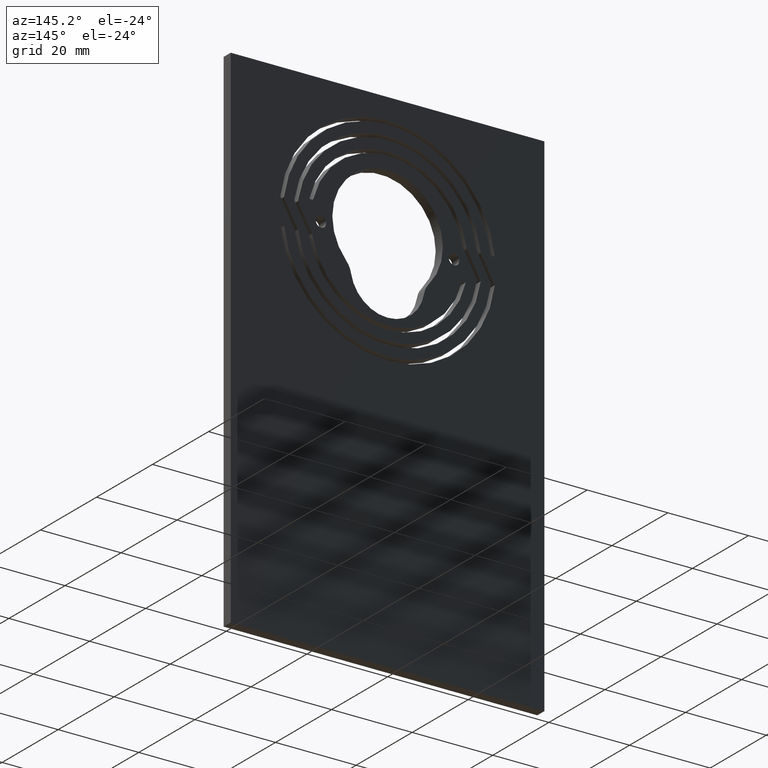
[diagram: clean part render]
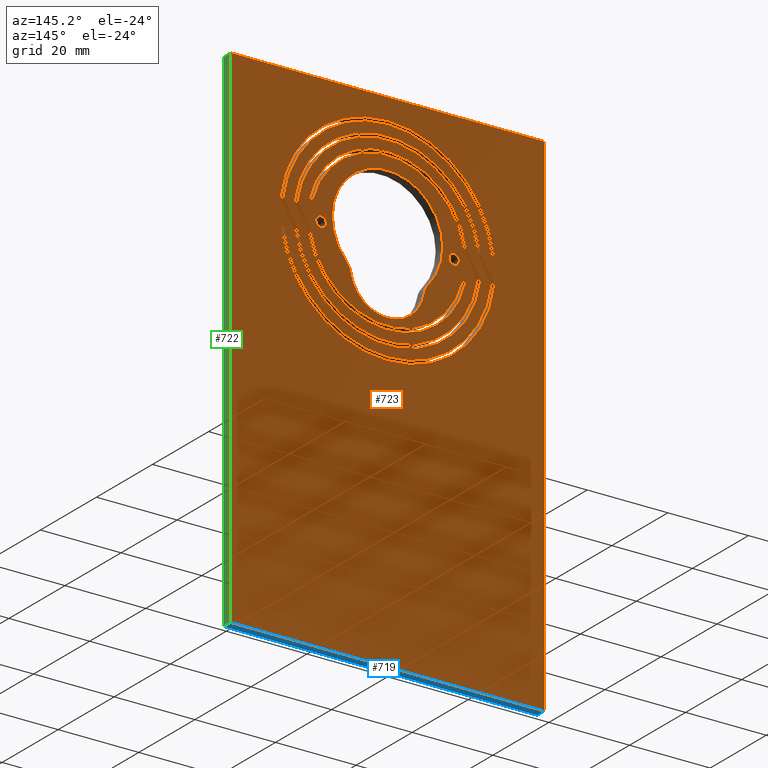
[diagram: same view with three faces highlighted in distinct colors, each labeled with its STEP entity id]
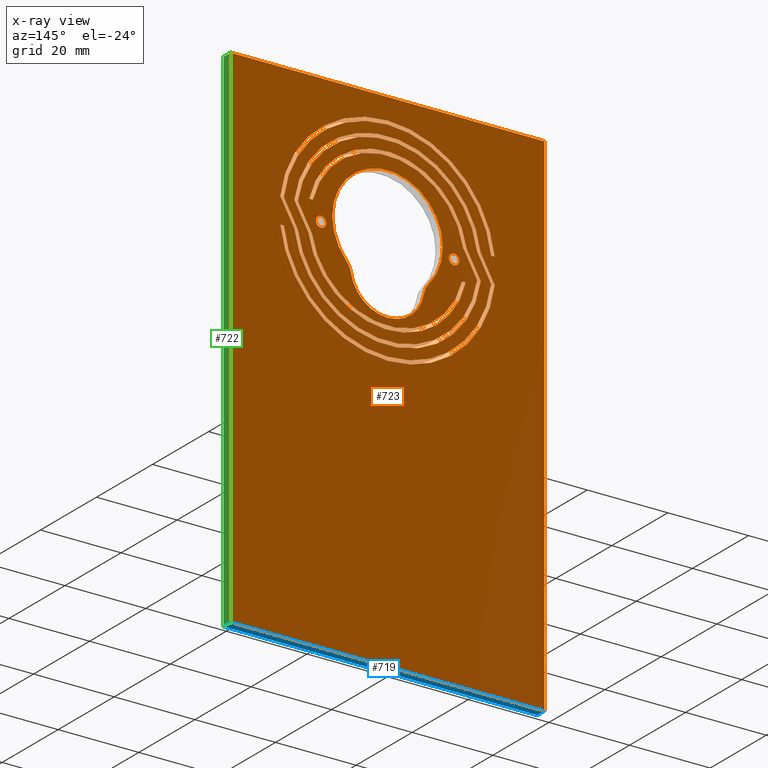
[diagram: x-ray of the same camera — body ghosted, the three highlighted faces saturated]
A machine part, auxiliary view with three faces highlighted in distinct colors.
The next image is the same camera in x-ray (body ghosted, the three faces saturated) — at least one of them is partly hidden behind the body in this view.
Their STEP definitions:

[orange] entity #723 — the highlighted planar face has unit normal (0, 1, 0).
#19=FACE_BOUND('',#118,.T.);
#20=FACE_BOUND('',#119,.T.);
#21=FACE_BOUND('',#120,.T.);
#22=FACE_BOUND('',#121,.T.);
#23=FACE_BOUND('',#122,.T.);
#45=PLANE('',#810);
#81=FACE_OUTER_BOUND('',#117,.T.);
#117=EDGE_LOOP('',(#603,#604,#605,#606));
#118=EDGE_LOOP('',(#607));
#119=EDGE_LOOP('',(#608));
#120=EDGE_LOOP('',(#609,#610,#611,#612));
#121=EDGE_LOOP('',(#613,#614,#615,#616,#617,#618,#619,#620,#621,#622,#623,
#624));
#122=EDGE_LOOP('',(#625,#626,#627,#628,#629,#630,#631,#632,#633,#634,#635,
#636));
#138=LINE('',#1080,#204);
#142=LINE('',#1092,#208);
#146=LINE('',#1104,#212);
#150=LINE('',#1116,#216);
#154=LINE('',#1128,#220);
#158=LINE('',#1138,#224);
#161=LINE('',#1146,#227);
#165=LINE('',#1158,#231);
#169=LINE('',#1170,#235);
#173=LINE('',#1182,#239);
#177=LINE('',#1194,#243);
#181=LINE('',#1206,#247);
#183=LINE('',#1214,#249);
#187=LINE('',#1222,#253);
#190=LINE('',#1228,#256);
#193=LINE('',#1233,#259);
#204=VECTOR('',#870,10.);
#208=VECTOR('',#882,10.);
#212=VECTOR('',#894,10.);
#216=VECTOR('',#906,10.);
#220=VECTOR('',#918,10.);
#224=VECTOR('',#930,10.);
#227=VECTOR('',#935,10.);
#231=VECTOR('',#947,10.);
#235=VECTOR('',#959,10.);
#239=VECTOR('',#971,10.);
#243=VECTOR('',#983,10.);
#247=VECTOR('',#995,10.);
#249=VECTOR('',#1005,10.);
#253=VECTOR('',#1011,10.);
#256=VECTOR('',#1016,10.);
#259=VECTOR('',#1021,10.);
#261=CIRCLE('',#741,1.3);
#263=CIRCLE('',#744,1.3);
#266=CIRCLE('',#748,4.8);
#268=CIRCLE('',#751,13.7);
#270=CIRCLE('',#754,4.8);
#272=CIRCLE('',#757,9.20000000000001);
#274=CIRCLE('',#760,19.9);
#276=CIRCLE('',#764,19.);
#278=CIRCLE('',#768,22.44);
#280=CIRCLE('',#772,25.88);
#282=CIRCLE('',#776,26.78);
#284=CIRCLE('',#780,23.34);
#286=CIRCLE('',#785,25.88);
#288=CIRCLE('',#789,26.78);
#290=CIRCLE('',#793,23.34);
#292=CIRCLE('',#797,19.9);
#294=CIRCLE('',#801,19.);
#296=CIRCLE('',#805,22.44);
#297=VERTEX_POINT('',#1032);
#299=VERTEX_POINT('',#1038);
#303=VERTEX_POINT('',#1047);
#304=VERTEX_POINT('',#1049);
#306=VERTEX_POINT('',#1055);
#308=VERTEX_POINT('',#1061);
#311=VERTEX_POINT('',#1071);
#312=VERTEX_POINT('',#1073);
#314=VERTEX_POINT('',#1079);
#316=VERTEX_POINT('',#1085);
#318=VERTEX_POINT('',#1091);
#320=VERTEX_POINT('',#1097);
#322=VERTEX_POINT('',#1103);
#324=VERTEX_POINT('',#1109);
#326=VERTEX_POINT('',#1115);
#328=VERTEX_POINT('',#1121);
#330=VERTEX_POINT('',#1127);
#332=VERTEX_POINT('',#1133);
#335=VERTEX_POINT('',#1143);
#336=VERTEX_POINT('',#1145);
#338=VERTEX_POINT('',#1151);
#340=VERTEX_POINT('',#1157);
#342=VERTEX_POINT('',#1163);
#344=VERTEX_POINT('',#1169);
#346=VERTEX_POINT('',#1175);
#348=VERTEX_POINT('',#1181);
#350=VERTEX_POINT('',#1187);
#352=VERTEX_POINT('',#1193);
#354=VERTEX_POINT('',#1199);
#356=VERTEX_POINT('',#1205);
#357=VERTEX_POINT('',#1212);
#358=VERTEX_POINT('',#1213);
#361=VERTEX_POINT('',#1221);
#363=VERTEX_POINT('',#1227);
#365=EDGE_CURVE('',#297,#297,#261,.T.);
#368=EDGE_CURVE('',#299,#299,#263,.T.);
#373=EDGE_CURVE('',#304,#303,#266,.T.);
#376=EDGE_CURVE('',#306,#304,#268,.T.);
#379=EDGE_CURVE('',#308,#306,#270,.T.);
#382=EDGE_CURVE('',#303,#308,#272,.T.);
#385=EDGE_CURVE('',#312,#311,#274,.T.);
#388=EDGE_CURVE('',#314,#312,#138,.T.);
#391=EDGE_CURVE('',#316,#314,#276,.T.);
#394=EDGE_CURVE('',#318,#316,#142,.T.);
#397=EDGE_CURVE('',#320,#318,#278,.T.);
#400=EDGE_CURVE('',#322,#320,#146,.T.);
#403=EDGE_CURVE('',#324,#322,#280,.T.);
#406=EDGE_CURVE('',#326,#324,#150,.T.);
#409=EDGE_CURVE('',#328,#326,#282,.T.);
#412=EDGE_CURVE('',#330,#328,#154,.T.);
#415=EDGE_CURVE('',#332,#330,#284,.T.);
#418=EDGE_CURVE('',#311,#332,#158,.T.);
#421=EDGE_CURVE('',#336,#335,#161,.T.);
#424=EDGE_CURVE('',#338,#336,#286,.T.);
#427=EDGE_CURVE('',#340,#338,#165,.T.);
#430=EDGE_CURVE('',#342,#340,#288,.T.);
#433=EDGE_CURVE('',#344,#342,#169,.T.);
#436=EDGE_CURVE('',#346,#344,#290,.T.);
#439=EDGE_CURVE('',#348,#346,#173,.T.);
#442=EDGE_CURVE('',#350,#348,#292,.T.);
#445=EDGE_CURVE('',#352,#350,#177,.T.);
#448=EDGE_CURVE('',#354,#352,#294,.T.);
#451=EDGE_CURVE('',#356,#354,#181,.T.);
#454=EDGE_CURVE('',#335,#356,#296,.T.);
#455=EDGE_CURVE('',#357,#358,#183,.T.);
#459=EDGE_CURVE('',#358,#361,#187,.T.);
#462=EDGE_CURVE('',#361,#363,#190,.T.);
#465=EDGE_CURVE('',#363,#357,#193,.T.);
#603=ORIENTED_EDGE('',*,*,#465,.T.);
#604=ORIENTED_EDGE('',*,*,#455,.T.);
#605=ORIENTED_EDGE('',*,*,#459,.T.);
#606=ORIENTED_EDGE('',*,*,#462,.T.);
#607=ORIENTED_EDGE('',*,*,#365,.T.);
#608=ORIENTED_EDGE('',*,*,#368,.T.);
#609=ORIENTED_EDGE('',*,*,#373,.T.);
#610=ORIENTED_EDGE('',*,*,#382,.T.);
#611=ORIENTED_EDGE('',*,*,#379,.T.);
#612=ORIENTED_EDGE('',*,*,#376,.T.);
#613=ORIENTED_EDGE('',*,*,#385,.T.);
#614=ORIENTED_EDGE('',*,*,#418,.T.);
#615=ORIENTED_EDGE('',*,*,#415,.T.);
#616=ORIENTED_EDGE('',*,*,#412,.T.);
#617=ORIENTED_EDGE('',*,*,#409,.T.);
#618=ORIENTED_EDGE('',*,*,#406,.T.);
#619=ORIENTED_EDGE('',*,*,#403,.T.);
#620=ORIENTED_EDGE('',*,*,#400,.T.);
#621=ORIENTED_EDGE('',*,*,#397,.T.);
#622=ORIENTED_EDGE('',*,*,#394,.T.);
#623=ORIENTED_EDGE('',*,*,#391,.T.);
#624=ORIENTED_EDGE('',*,*,#388,.T.);
#625=ORIENTED_EDGE('',*,*,#421,.T.);
#626=ORIENTED_EDGE('',*,*,#454,.T.);
#627=ORIENTED_EDGE('',*,*,#451,.T.);
#628=ORIENTED_EDGE('',*,*,#448,.T.);
#629=ORIENTED_EDGE('',*,*,#445,.T.);
#630=ORIENTED_EDGE('',*,*,#442,.T.);
#631=ORIENTED_EDGE('',*,*,#439,.T.);
#632=ORIENTED_EDGE('',*,*,#436,.T.);
#633=ORIENTED_EDGE('',*,*,#433,.T.);
#634=ORIENTED_EDGE('',*,*,#430,.T.);
#635=ORIENTED_EDGE('',*,*,#427,.T.);
#636=ORIENTED_EDGE('',*,*,#424,.T.);
#723=ADVANCED_FACE('',(#81,#19,#20,#21,#22,#23),#45,.T.);
#741=AXIS2_PLACEMENT_3D('',#1033,#819,#820);
#744=AXIS2_PLACEMENT_3D('',#1039,#826,#827);
#748=AXIS2_PLACEMENT_3D('',#1050,#836,#837);
#751=AXIS2_PLACEMENT_3D('',#1056,#843,#844);
#754=AXIS2_PLACEMENT_3D('',#1062,#850,#851);
#757=AXIS2_PLACEMENT_3D('',#1066,#857,#858);
#760=AXIS2_PLACEMENT_3D('',#1074,#864,#865);
#764=AXIS2_PLACEMENT_3D('',#1086,#876,#877);
#768=AXIS2_PLACEMENT_3D('',#1098,#888,#889);
#772=AXIS2_PLACEMENT_3D('',#1110,#900,#901);
#776=AXIS2_PLACEMENT_3D('',#1122,#912,#913);
#780=AXIS2_PLACEMENT_3D('',#1134,#924,#925);
#785=AXIS2_PLACEMENT_3D('',#1152,#941,#942);
#789=AXIS2_PLACEMENT_3D('',#1164,#953,#954);
#793=AXIS2_PLACEMENT_3D('',#1176,#965,#966);
#797=AXIS2_PLACEMENT_3D('',#1188,#977,#978);
#801=AXIS2_PLACEMENT_3D('',#1200,#989,#990);
#805=AXIS2_PLACEMENT_3D('',#1210,#1001,#1002);
#810=AXIS2_PLACEMENT_3D('',#1235,#1023,#1024);
#819=DIRECTION('center_axis',(0.,-1.,0.));
#820=DIRECTION('ref_axis',(0.,0.,1.));
#826=DIRECTION('center_axis',(0.,-1.,0.));
#827=DIRECTION('ref_axis',(0.,0.,1.));
#836=DIRECTION('center_axis',(0.,1.,0.));
#837=DIRECTION('ref_axis',(0.746361701118838,0.,0.66554054054054));
#843=DIRECTION('center_axis',(0.,-1.,0.));
#844=DIRECTION('ref_axis',(-0.746361701118838,0.,-0.66554054054054));
#850=DIRECTION('center_axis',(0.,1.,0.));
#851=DIRECTION('ref_axis',(-0.986263676478464,0.,0.165178571428571));
#857=DIRECTION('center_axis',(0.,-1.,0.));
#858=DIRECTION('ref_axis',(0.986263676478464,0.,-0.165178571428571));
#864=DIRECTION('center_axis',(0.,-1.,0.));
#865=DIRECTION('ref_axis',(1.,0.,0.));
#870=DIRECTION('',(1.,0.,0.));
#876=DIRECTION('center_axis',(0.,1.,0.));
#877=DIRECTION('ref_axis',(1.,0.,0.));
#882=DIRECTION('',(0.480742519782678,0.,0.876861807625923));
#888=DIRECTION('center_axis',(0.,1.,0.));
#889=DIRECTION('ref_axis',(1.,0.,0.));
#894=DIRECTION('',(-0.47955666712719,0.,-0.877510913330348));
#900=DIRECTION('center_axis',(0.,1.,0.));
#901=DIRECTION('ref_axis',(1.,0.,0.));
#906=DIRECTION('',(1.,0.,8.35032850502955E-17));
#912=DIRECTION('center_axis',(0.,-1.,0.));
#913=DIRECTION('ref_axis',(1.,0.,0.));
#918=DIRECTION('',(0.47932562607324,0.,0.877637136970341));
#924=DIRECTION('center_axis',(0.,-1.,0.));
#925=DIRECTION('ref_axis',(1.,0.,0.));
#930=DIRECTION('',(-0.480375580641031,0.,-0.877062883448953));
#935=DIRECTION('',(0.479556667127191,0.,0.877510913330347));
#941=DIRECTION('center_axis',(0.,1.,0.));
#942=DIRECTION('ref_axis',(1.,0.,0.));
#947=DIRECTION('',(-1.,0.,0.));
#953=DIRECTION('center_axis',(0.,-1.,0.));
#954=DIRECTION('ref_axis',(1.,0.,0.));
#959=DIRECTION('',(-0.47932562607324,0.,-0.877637136970341));
#965=DIRECTION('center_axis',(0.,-1.,0.));
#966=DIRECTION('ref_axis',(1.,0.,0.));
#971=DIRECTION('',(0.48037558064103,0.,0.877062883448954));
#977=DIRECTION('center_axis',(0.,-1.,0.));
#978=DIRECTION('ref_axis',(1.,0.,0.));
#983=DIRECTION('',(-1.,0.,0.));
#989=DIRECTION('center_axis',(0.,1.,0.));
#990=DIRECTION('ref_axis',(1.,0.,0.));
#995=DIRECTION('',(-0.480742519782678,0.,-0.876861807625923));
#1001=DIRECTION('center_axis',(0.,1.,0.));
#1002=DIRECTION('ref_axis',(1.,0.,0.));
#1005=DIRECTION('',(-1.,0.,0.));
#1011=DIRECTION('',(1.3987061727561E-16,0.,1.));
#1016=DIRECTION('',(1.,0.,0.));
#1021=DIRECTION('',(-3.49676543189026E-17,0.,-1.));
#1023=DIRECTION('center_axis',(0.,1.,0.));
#1024=DIRECTION('ref_axis',(1.,0.,0.));
#1032=CARTESIAN_POINT('',(16.5,0.,-3.29999999999999));
#1033=CARTESIAN_POINT('Origin',(16.5,0.,-1.99999999999999));
#1038=CARTESIAN_POINT('',(-16.5,0.,-3.30000000000001));
#1039=CARTESIAN_POINT('Origin',(-16.5,0.,-2.00000000000001));
#1047=CARTESIAN_POINT('',(-9.07362582360187,0.,-11.5196428571429));
#1049=CARTESIAN_POINT('',(-10.2251553053281,0.,-9.1179054054054));
#1050=CARTESIAN_POINT('Origin',(-13.8076914706985,0.,-12.3125));
#1055=CARTESIAN_POINT('',(10.2251553053281,0.,-9.1179054054054));
#1056=CARTESIAN_POINT('Origin',(4.44089209850063E-15,0.,2.77555756156289E-16));
#1061=CARTESIAN_POINT('',(9.07362582360188,0.,-11.5196428571428));
#1062=CARTESIAN_POINT('Origin',(13.8076914706985,0.,-12.3125));
#1066=CARTESIAN_POINT('Origin',(0.,0.,-9.99999999999999));
#1071=CARTESIAN_POINT('',(-19.6450852632408,0.,1.175));
#1073=CARTESIAN_POINT('',(19.4065889547107,0.,2.40389658630871));
#1074=CARTESIAN_POINT('Origin',(2.80030629290744E-16,0.,-2.));
#1079=CARTESIAN_POINT('',(18.4825781442173,0.,2.40389658630871));
#1080=CARTESIAN_POINT('',(9.24128907210864,0.,2.40389658630871));
#1085=CARTESIAN_POINT('',(-18.7328421495511,0.,1.175));
#1086=CARTESIAN_POINT('Origin',(2.80030629290744E-16,0.,-2.));
#1091=CARTESIAN_POINT('',(-22.2142516191746,0.,-5.17500000000001));
#1092=CARTESIAN_POINT('',(-25.6173739299359,0.,-11.3822062657059));
#1097=CARTESIAN_POINT('',(22.2142516191746,0.,-5.175));
#1098=CARTESIAN_POINT('Origin',(2.80030629290744E-16,0.,-2.));
#1103=CARTESIAN_POINT('',(25.6845045698764,0.,1.175));
#1104=CARTESIAN_POINT('',(15.4352117533324,0.,-17.5795433458654));
#1109=CARTESIAN_POINT('',(-25.6845045698764,0.,1.175));
#1110=CARTESIAN_POINT('Origin',(2.80030629290744E-16,0.,-2.));
#1115=CARTESIAN_POINT('',(-26.5911221087039,0.,1.175));
#1116=CARTESIAN_POINT('',(-13.2955610543519,0.,1.175));
#1121=CARTESIAN_POINT('',(26.5911221087039,0.,1.175));
#1122=CARTESIAN_POINT('Origin',(2.80030629290744E-16,0.,-2.));
#1127=CARTESIAN_POINT('',(23.1230399169313,0.,-5.175));
#1128=CARTESIAN_POINT('',(14.5089502745033,0.,-20.9472528489041));
#1133=CARTESIAN_POINT('',(-23.1230399169313,0.,-5.175));
#1134=CARTESIAN_POINT('Origin',(2.80030629290744E-16,0.,-2.));
#1138=CARTESIAN_POINT('',(-24.6830568892438,0.,-8.02325673723841));
#1143=CARTESIAN_POINT('',(-22.2142516191746,0.,1.17499999999999));
#1145=CARTESIAN_POINT('',(-25.6845045698764,0.,-5.175));
#1146=CARTESIAN_POINT('',(-28.6909223357122,0.,-10.6762568490712));
#1151=CARTESIAN_POINT('',(25.6845045698764,0.,-5.175));
#1152=CARTESIAN_POINT('Origin',(2.80030629290744E-16,0.,-2.));
#1157=CARTESIAN_POINT('',(26.5911221087039,0.,-5.175));
#1158=CARTESIAN_POINT('',(13.2955610543519,0.,-5.175));
#1163=CARTESIAN_POINT('',(-26.5911221087039,0.,-5.175));
#1164=CARTESIAN_POINT('Origin',(2.80030629290744E-16,0.,-2.));
#1169=CARTESIAN_POINT('',(-23.1230399169313,0.,1.175));
#1170=CARTESIAN_POINT('',(-27.7601803340215,0.,-7.31552589306509));
#1175=CARTESIAN_POINT('',(23.1230399169313,0.,1.175));
#1176=CARTESIAN_POINT('Origin',(2.80030629290744E-16,0.,-2.));
#1181=CARTESIAN_POINT('',(19.6450852632408,0.,-5.175));
#1182=CARTESIAN_POINT('',(11.4114897445359,0.,-20.2077812607611));
#1187=CARTESIAN_POINT('',(-19.4065889547107,0.,-6.40389658630871));
#1188=CARTESIAN_POINT('Origin',(2.80030629290744E-16,0.,-2.));
#1193=CARTESIAN_POINT('',(-18.4825781442173,0.,-6.40389658630871));
#1194=CARTESIAN_POINT('',(-9.24128907210865,0.,-6.40389658630871));
#1199=CARTESIAN_POINT('',(18.7328421495511,0.,-5.175));
#1200=CARTESIAN_POINT('Origin',(2.80030629290744E-16,0.,-2.));
#1205=CARTESIAN_POINT('',(22.2142516191746,0.,1.175));
#1206=CARTESIAN_POINT('',(12.3387141506086,0.,-16.8377225689936));
#1210=CARTESIAN_POINT('Origin',(2.80030629290744E-16,0.,-2.));
#1212=CARTESIAN_POINT('',(38.8874,0.,-97.));
#1213=CARTESIAN_POINT('',(-38.8874,0.,-97.));
#1214=CARTESIAN_POINT('',(38.8874,0.,-97.));
#1221=CARTESIAN_POINT('',(-38.8874,0.,30.));
#1222=CARTESIAN_POINT('',(-38.8874,0.,-97.));
#1227=CARTESIAN_POINT('',(38.8874,0.,30.));
#1228=CARTESIAN_POINT('',(-38.8874,0.,30.));
#1233=CARTESIAN_POINT('',(38.8874,0.,30.));
#1235=CARTESIAN_POINT('Origin',(-1.33226762955019E-14,0.,-33.5));

[blue] entity #719 — the highlighted planar face has unit normal (0, 0, -1).
#41=PLANE('',#806);
#77=FACE_OUTER_BOUND('',#113,.T.);
#113=EDGE_LOOP('',(#587,#588,#589,#590));
#183=LINE('',#1214,#249);
#184=LINE('',#1216,#250);
#185=LINE('',#1218,#251);
#186=LINE('',#1219,#252);
#249=VECTOR('',#1005,10.);
#250=VECTOR('',#1006,10.);
#251=VECTOR('',#1007,10.);
#252=VECTOR('',#1008,10.);
#357=VERTEX_POINT('',#1212);
#358=VERTEX_POINT('',#1213);
#359=VERTEX_POINT('',#1215);
#360=VERTEX_POINT('',#1217);
#455=EDGE_CURVE('',#357,#358,#183,.T.);
#456=EDGE_CURVE('',#357,#359,#184,.T.);
#457=EDGE_CURVE('',#360,#359,#185,.T.);
#458=EDGE_CURVE('',#358,#360,#186,.T.);
#587=ORIENTED_EDGE('',*,*,#455,.F.);
#588=ORIENTED_EDGE('',*,*,#456,.T.);
#589=ORIENTED_EDGE('',*,*,#457,.F.);
#590=ORIENTED_EDGE('',*,*,#458,.F.);
#719=ADVANCED_FACE('',(#77),#41,.T.);
#806=AXIS2_PLACEMENT_3D('',#1211,#1003,#1004);
#1003=DIRECTION('center_axis',(0.,0.,-1.));
#1004=DIRECTION('ref_axis',(1.,0.,0.));
#1005=DIRECTION('',(-1.,0.,0.));
#1006=DIRECTION('',(0.,-1.,0.));
#1007=DIRECTION('',(1.,0.,0.));
#1008=DIRECTION('',(0.,-1.,0.));
#1211=CARTESIAN_POINT('Origin',(-38.8874,0.,-97.));
#1212=CARTESIAN_POINT('',(38.8874,0.,-97.));
#1213=CARTESIAN_POINT('',(-38.8874,0.,-97.));
#1214=CARTESIAN_POINT('',(38.8874,0.,-97.));
#1215=CARTESIAN_POINT('',(38.8874,-2.54,-97.));
#1216=CARTESIAN_POINT('',(38.8874,0.,-97.));
#1217=CARTESIAN_POINT('',(-38.8874,-2.54,-97.));
#1218=CARTESIAN_POINT('',(38.8874,-2.54,-97.));
#1219=CARTESIAN_POINT('',(-38.8874,0.,-97.));

[green] entity #722 — the highlighted planar face has unit normal (1, 0, -0).
#44=PLANE('',#809);
#80=FACE_OUTER_BOUND('',#116,.T.);
#116=EDGE_LOOP('',(#599,#600,#601,#602));
#184=LINE('',#1216,#250);
#192=LINE('',#1231,#258);
#193=LINE('',#1233,#259);
#194=LINE('',#1234,#260);
#250=VECTOR('',#1006,10.);
#258=VECTOR('',#1018,10.);
#259=VECTOR('',#1021,10.);
#260=VECTOR('',#1022,10.);
#357=VERTEX_POINT('',#1212);
#359=VERTEX_POINT('',#1215);
#363=VERTEX_POINT('',#1227);
#364=VERTEX_POINT('',#1229);
#456=EDGE_CURVE('',#357,#359,#184,.T.);
#464=EDGE_CURVE('',#363,#364,#192,.T.);
#465=EDGE_CURVE('',#363,#357,#193,.T.);
#466=EDGE_CURVE('',#359,#364,#194,.T.);
#599=ORIENTED_EDGE('',*,*,#465,.F.);
#600=ORIENTED_EDGE('',*,*,#464,.T.);
#601=ORIENTED_EDGE('',*,*,#466,.F.);
#602=ORIENTED_EDGE('',*,*,#456,.F.);
#722=ADVANCED_FACE('',(#80),#44,.T.);
#809=AXIS2_PLACEMENT_3D('',#1232,#1019,#1020);
#1006=DIRECTION('',(0.,-1.,0.));
#1018=DIRECTION('',(0.,-1.,0.));
#1019=DIRECTION('center_axis',(1.,0.,-3.49676543189026E-17));
#1020=DIRECTION('ref_axis',(3.49676543189026E-17,0.,1.));
#1021=DIRECTION('',(-3.49676543189026E-17,0.,-1.));
#1022=DIRECTION('',(3.49676543189026E-17,0.,1.));
#1212=CARTESIAN_POINT('',(38.8874,0.,-97.));
#1215=CARTESIAN_POINT('',(38.8874,-2.54,-97.));
#1216=CARTESIAN_POINT('',(38.8874,0.,-97.));
#1227=CARTESIAN_POINT('',(38.8874,0.,30.));
#1229=CARTESIAN_POINT('',(38.8874,-2.54,30.));
#1231=CARTESIAN_POINT('',(38.8874,0.,30.));
#1232=CARTESIAN_POINT('Origin',(38.8874,0.,-97.));
#1233=CARTESIAN_POINT('',(38.8874,0.,30.));
#1234=CARTESIAN_POINT('',(38.8874,-2.54,30.));